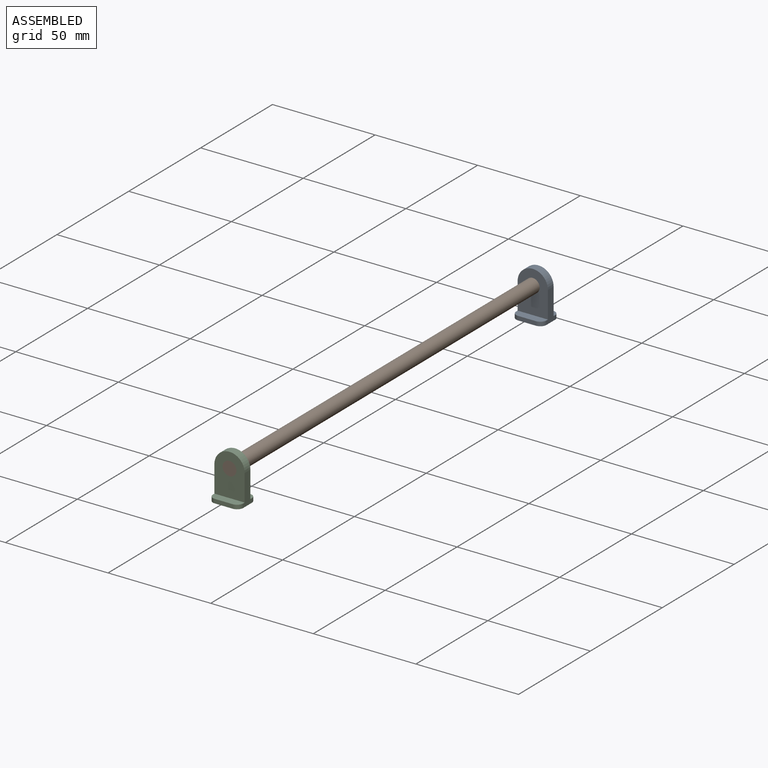
[diagram: assembled view]
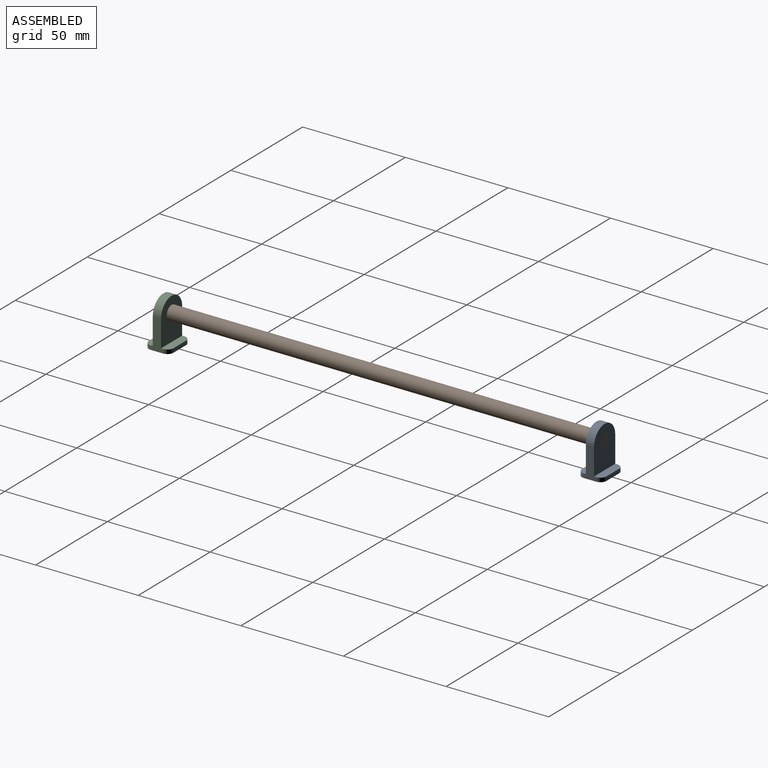
[diagram: assembled view, second angle]
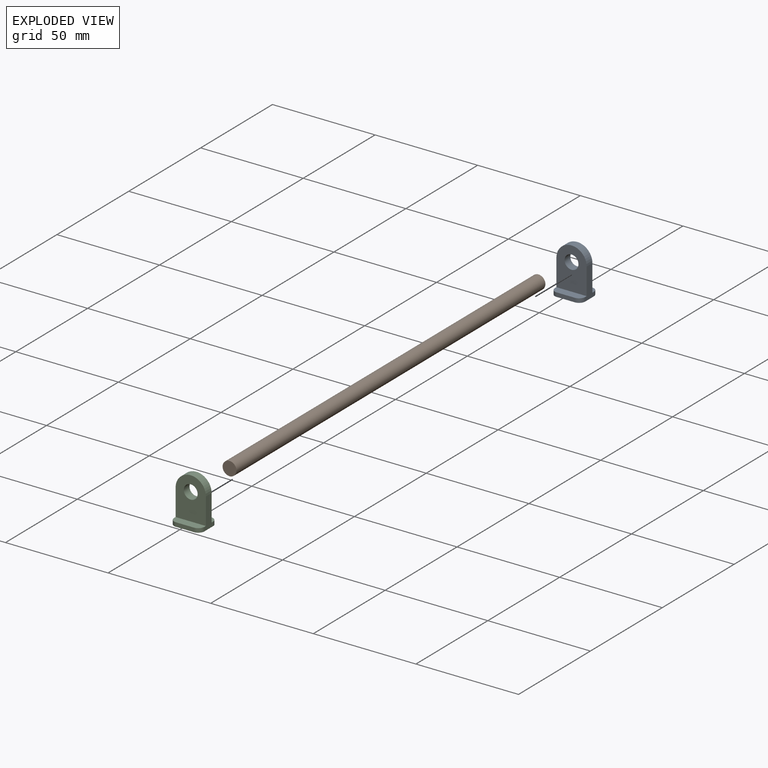
[diagram: exploded view]
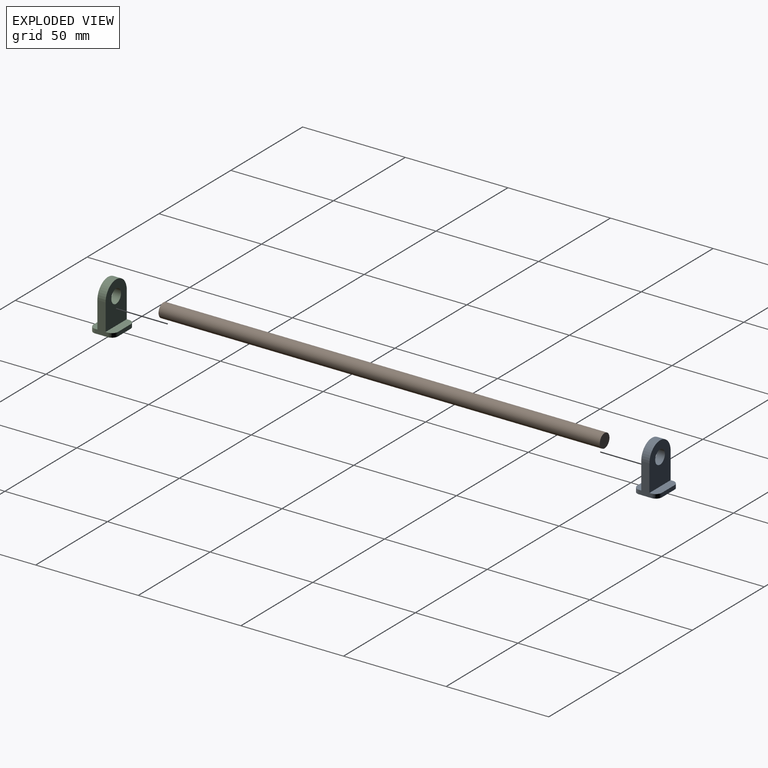
[diagram: exploded view, second angle]
ASSEMBLY  parts=3 mates=2
PART A: 15 faces, bbox 14.8x12x22.4 mm
  f0: plane 20.38x14.75mm, normal (0,-1,0), area 241.4mm2, adj f2,f3,f4,f6,f10
  f1: plane 20.38x14.75mm, normal (0,1,0), area 241.4mm2, adj f2,f3,f4,f6,f8
  f2: plane 15x6mm, normal (1,0,0), area 64mm2, adj f0,f1,f3,f5,f8,f10,f12,f13
  f3: cylinder r=7.38mm len=14.75mm, axis (0,1,0), area 92.7mm2, adj f0,f1,f2,f4
  f4: plane 15x6mm, normal (-1,0,0), area 64mm2, adj f0,f1,f3,f5,f8,f10,f11,f14
  f5: plane 14.75x12mm, normal (0,0,-1), area 169.3mm2, adj f2,f4,f7,f9,f11,f12,f13,f14
  f6: cylinder r=3.38mm len=6.75mm, axis (0,1,0), area 84.8mm2, adj f0,f1
  f7: plane 8.75x2mm, normal (0,1,0), area 17.5mm2, adj f5,f8,f11,f12
  f8: plane 14.75x4mm, normal (0,0,1), area 55.1mm2, adj f1,f2,f4,f7,f11,f12
  f9: plane 8.75x2mm, normal (0,-1,0), area 17.5mm2, adj f5,f10,f13,f14
  f10: plane 14.75x4mm, normal (0,0,1), area 55.1mm2, adj f0,f2,f4,f9,f13,f14
  f11: cylinder r=3mm len=3mm, axis (0,0,1), area 9.4mm2, adj f4,f5,f7,f8
  f12: cylinder r=3mm len=3mm, axis (0,0,-1), area 9.4mm2, adj f2,f5,f7,f8
  f13: cylinder r=3mm len=3mm, axis (0,0,1), area 9.4mm2, adj f2,f5,f9,f10
  f14: cylinder r=3mm len=3mm, axis (0,0,-1), area 9.4mm2, adj f4,f5,f9,f10
PART B: 3 faces, bbox 6.8x215x6.8 mm
  f0: cylinder r=3.38mm len=215mm, axis (0,1,0), area 4559.2mm2, adj f1,f2
  f1: plane 6.75x6.75mm, normal (0,-1,0), area 35.8mm2, adj f0
  f2: plane 6.75x6.75mm, normal (0,1,0), area 35.8mm2, adj f0
PART C: same geometry as A
PLACE A t=(5.79,41.25,38.14)mm
PLACE B t=(5.79,41.25,38.14)mm
PLACE C t=(5.79,-169.75,38.14)mm
MATE fastened B.f0 <-> C.f3  axis (0,-1,0) through (5.79,-173.75,38.14)mm
MATE fastened B.f0 <-> A.f3  axis (0,1,0) through (5.79,41.25,38.14)mm
